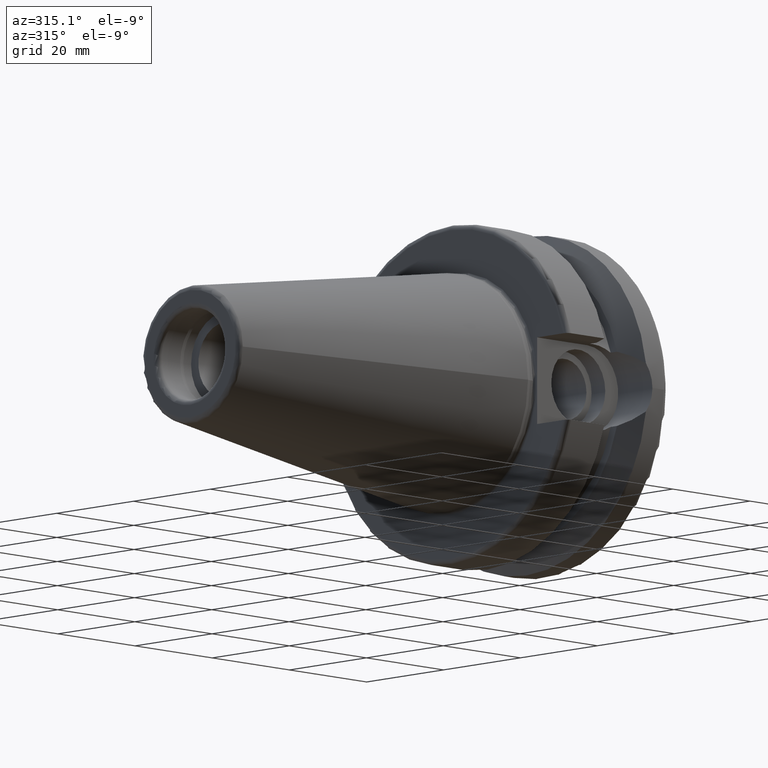
[diagram: clean part render]
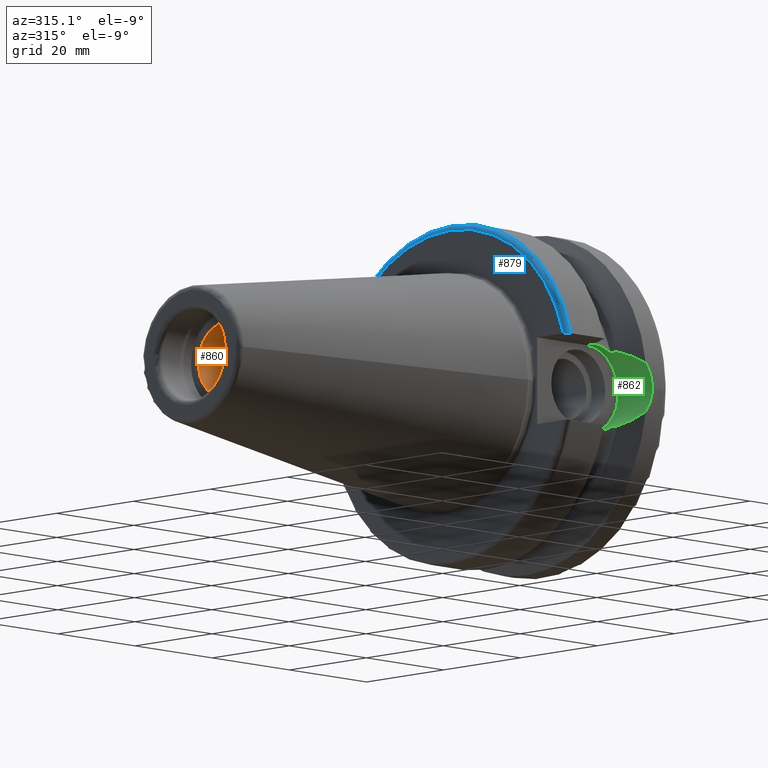
[diagram: same view with three faces highlighted in distinct colors, each labeled with its STEP entity id]
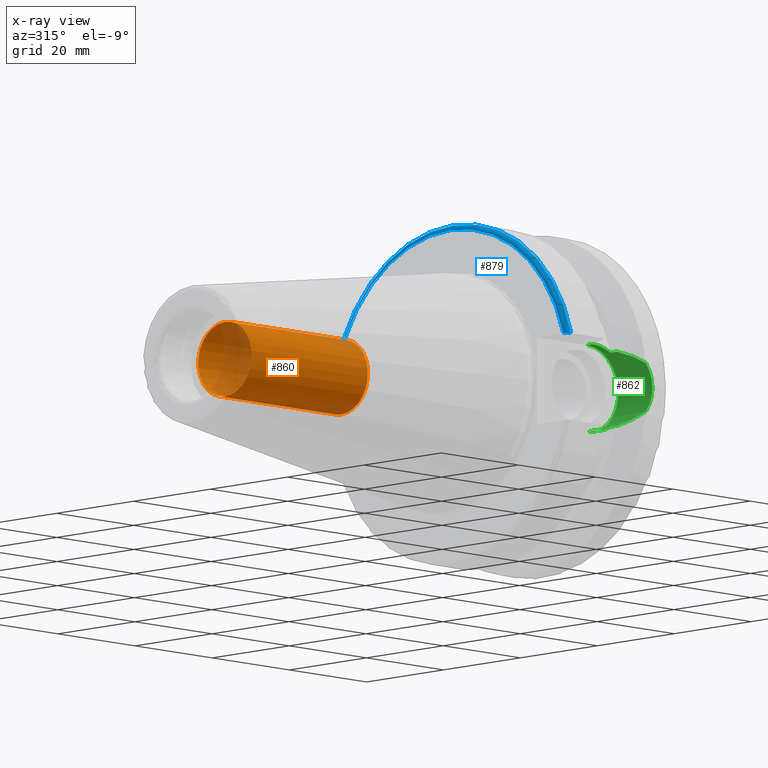
[diagram: x-ray of the same camera — body ghosted, the three highlighted faces saturated]
A machine part, auxiliary view with three faces highlighted in distinct colors.
The next image is the same camera in x-ray (body ghosted, the three faces saturated) — at least one of them is partly hidden behind the body in this view.
Their STEP definitions:

[orange] entity #860 — the highlighted cylindrical surface (bore or boss wall) has radius 6.9175 mm, axis along (-1, 0, 0).
#102=FACE_OUTER_BOUND('',#163,.T.);
#163=EDGE_LOOP('',(#630,#631,#632,#633));
#213=LINE('',#1422,#259);
#259=VECTOR('',#1127,6.9175);
#318=CIRCLE('',#956,6.9175);
#319=CIRCLE('',#960,6.9175);
#379=VERTEX_POINT('',#1414);
#380=VERTEX_POINT('',#1420);
#472=EDGE_CURVE('',#379,#379,#318,.T.);
#474=EDGE_CURVE('',#380,#380,#319,.T.);
#475=EDGE_CURVE('',#380,#379,#213,.T.);
#630=ORIENTED_EDGE('',*,*,#474,.F.);
#631=ORIENTED_EDGE('',*,*,#475,.T.);
#632=ORIENTED_EDGE('',*,*,#472,.T.);
#633=ORIENTED_EDGE('',*,*,#475,.F.);
#832=CYLINDRICAL_SURFACE('',#959,6.9175);
#860=ADVANCED_FACE('',(#102),#832,.F.);
#956=AXIS2_PLACEMENT_3D('',#1415,#1116,#1117);
#959=AXIS2_PLACEMENT_3D('',#1419,#1123,#1124);
#960=AXIS2_PLACEMENT_3D('',#1421,#1125,#1126);
#1116=DIRECTION('center_axis',(1.,0.,0.));
#1117=DIRECTION('ref_axis',(0.,0.,1.));
#1123=DIRECTION('center_axis',(-1.,0.,0.));
#1124=DIRECTION('ref_axis',(0.,0.,1.));
#1125=DIRECTION('center_axis',(1.,0.,0.));
#1126=DIRECTION('ref_axis',(0.,0.,1.));
#1127=DIRECTION('',(1.,0.,0.));
#1414=CARTESIAN_POINT('',(-26.22,8.47149423310182E-16,-6.9175));
#1415=CARTESIAN_POINT('Origin',(-26.22,0.,0.));
#1419=CARTESIAN_POINT('Origin',(-38.485,0.,0.));
#1420=CARTESIAN_POINT('',(-56.4,8.47149423310182E-16,-6.9175));
#1421=CARTESIAN_POINT('Origin',(-56.4,0.,0.));
#1422=CARTESIAN_POINT('',(-38.485,-8.47149423310182E-16,-6.9175));

[blue] entity #879 — the highlighted toroidal blend (fillet) surface has major radius 30.5 mm and minor (blend) radius 1 mm.
#31=TOROIDAL_SURFACE('',#996,30.5,1.00000000000001);
#38=B_SPLINE_CURVE_WITH_KNOTS('',3,(#1436,#1437,#1438,#1439,#1440,#1441,
#1442,#1443,#1444,#1445),.UNSPECIFIED.,.F.,.F.,(4,2,2,2,4),(-0.150751871388631,
-0.111946181815504,-0.0738743445372396,-0.0366169489027566,0.),
 .UNSPECIFIED.);
#50=B_SPLINE_CURVE_WITH_KNOTS('',3,(#1610,#1611,#1612,#1613,#1614,#1615,
#1616,#1617,#1618,#1619),.UNSPECIFIED.,.F.,.F.,(4,2,2,2,4),(0.,0.0366169489027566,
0.0738743445372396,0.111946181815504,0.150751871388631),.UNSPECIFIED.);
#121=FACE_OUTER_BOUND('',#185,.T.);
#185=EDGE_LOOP('',(#751,#752,#753,#754));
#333=CIRCLE('',#991,30.5);
#337=CIRCLE('',#997,31.5);
#385=VERTEX_POINT('',#1433);
#386=VERTEX_POINT('',#1435);
#420=VERTEX_POINT('',#1607);
#421=VERTEX_POINT('',#1609);
#480=EDGE_CURVE('',#386,#385,#38,.T.);
#527=EDGE_CURVE('',#421,#420,#50,.T.);
#539=EDGE_CURVE('',#420,#386,#333,.T.);
#543=EDGE_CURVE('',#421,#385,#337,.T.);
#751=ORIENTED_EDGE('',*,*,#480,.T.);
#752=ORIENTED_EDGE('',*,*,#543,.F.);
#753=ORIENTED_EDGE('',*,*,#527,.T.);
#754=ORIENTED_EDGE('',*,*,#539,.T.);
#879=ADVANCED_FACE('',(#121),#31,.T.);
#991=AXIS2_PLACEMENT_3D('',#1653,#1219,#1220);
#996=AXIS2_PLACEMENT_3D('',#1659,#1229,#1230);
#997=AXIS2_PLACEMENT_3D('',#1660,#1231,#1232);
#1219=DIRECTION('center_axis',(1.,0.,0.));
#1220=DIRECTION('ref_axis',(0.,0.,-1.));
#1229=DIRECTION('center_axis',(1.,0.,0.));
#1230=DIRECTION('ref_axis',(0.,-1.22464679914735E-16,1.));
#1231=DIRECTION('center_axis',(1.,0.,0.));
#1232=DIRECTION('ref_axis',(0.,0.,-1.));
#1433=CARTESIAN_POINT('',(2.99999999999999,-30.4540227227866,8.05));
#1435=CARTESIAN_POINT('',(1.99999999999999,-29.4184890842477,8.05));
#1436=CARTESIAN_POINT('Ctrl Pts',(1.99999999999999,-29.4184890842477,8.05));
#1437=CARTESIAN_POINT('Ctrl Pts',(1.99999999999999,-29.5478413828248,8.05));
#1438=CARTESIAN_POINT('Ctrl Pts',(2.02950258743517,-29.7002346307938,8.05));
#1439=CARTESIAN_POINT('Ctrl Pts',(2.12587454939785,-29.9376810968085,8.05));
#1440=CARTESIAN_POINT('Ctrl Pts',(2.2089547883793,-30.0653098968133,8.05));
#1441=CARTESIAN_POINT('Ctrl Pts',(2.38465986426588,-30.2446912007727,8.05));
#1442=CARTESIAN_POINT('Ctrl Pts',(2.50758665841081,-30.3289456947341,8.05));
#1443=CARTESIAN_POINT('Ctrl Pts',(2.73442803339431,-30.4247631098996,8.05));
#1444=CARTESIAN_POINT('Ctrl Pts',(2.87794350365748,-30.4540227227866,8.05));
#1445=CARTESIAN_POINT('Ctrl Pts',(3.,-30.4540227227866,8.05));
#1607=CARTESIAN_POINT('',(1.99999999999999,29.4184890842477,8.05));
#1609=CARTESIAN_POINT('',(2.99999999999999,30.4540227227866,8.05));
#1610=CARTESIAN_POINT('Ctrl Pts',(3.,30.4540227227866,8.05));
#1611=CARTESIAN_POINT('Ctrl Pts',(2.87794350365748,30.4540227227866,8.05));
#1612=CARTESIAN_POINT('Ctrl Pts',(2.73442803339431,30.4247631098996,8.05));
#1613=CARTESIAN_POINT('Ctrl Pts',(2.50758665841081,30.3289456947341,8.05));
#1614=CARTESIAN_POINT('Ctrl Pts',(2.38465986426588,30.2446912007727,8.05));
#1615=CARTESIAN_POINT('Ctrl Pts',(2.2089547883793,30.0653098968133,8.05));
#1616=CARTESIAN_POINT('Ctrl Pts',(2.12587454939785,29.9376810968085,8.05));
#1617=CARTESIAN_POINT('Ctrl Pts',(2.02950258743517,29.7002346307938,8.05));
#1618=CARTESIAN_POINT('Ctrl Pts',(1.99999999999999,29.5478413828248,8.05));
#1619=CARTESIAN_POINT('Ctrl Pts',(1.99999999999999,29.4184890842477,8.05));
#1653=CARTESIAN_POINT('Origin',(1.99999999999999,0.,0.));
#1659=CARTESIAN_POINT('Origin',(3.,0.,0.));
#1660=CARTESIAN_POINT('Origin',(2.99999999999999,0.,0.));

[green] entity #862 — the highlighted cylindrical surface (partial cylindrical patch) has radius 8.05 mm, axis along (0, 1, 0).
#39=B_SPLINE_CURVE_WITH_KNOTS('',3,(#1453,#1454,#1455,#1456,#1457,#1458),
 .UNSPECIFIED.,.F.,.F.,(4,2,4),(0.,0.305559393991992,0.418764848000603),
 .UNSPECIFIED.);
#40=B_SPLINE_CURVE_WITH_KNOTS('',3,(#1464,#1465,#1466,#1467,#1468,#1469),
 .UNSPECIFIED.,.F.,.F.,(4,2,4),(2.02525951614585,2.13846497015446,2.44402436414645),
 .UNSPECIFIED.);
#41=B_SPLINE_CURVE_WITH_KNOTS('',3,(#1473,#1474,#1475,#1476,#1477,#1478),
 .UNSPECIFIED.,.F.,.F.,(4,2,4),(3.12975744792547,3.62699288756974,3.70848737461386),
 .UNSPECIFIED.);
#42=B_SPLINE_CURVE_WITH_KNOTS('',3,(#1480,#1481,#1482,#1483,#1484,#1485),
 .UNSPECIFIED.,.F.,.F.,(4,2,4),(1.21877751840372,1.52344857393281,1.67526011710938),
 .UNSPECIFIED.);
#43=B_SPLINE_CURVE_WITH_KNOTS('',3,(#1487,#1488,#1489,#1490,#1491,#1492),
 .UNSPECIFIED.,.F.,.F.,(4,2,4),(0.762294919698051,0.914106462874623,1.21877751840372),
 .UNSPECIFIED.);
#44=B_SPLINE_CURVE_WITH_KNOTS('',3,(#1494,#1495,#1496,#1497,#1498,#1499),
 .UNSPECIFIED.,.F.,.F.,(4,2,4),(1.46421027899559,1.54570476603972,2.04294020568399),
 .UNSPECIFIED.);
#104=FACE_OUTER_BOUND('',#165,.T.);
#165=EDGE_LOOP('',(#642,#643,#644,#645,#646,#647,#648,#649,#650,#651,#652));
#219=LINE('',#1450,#265);
#220=LINE('',#1462,#266);
#221=LINE('',#1471,#267);
#222=LINE('',#1500,#268);
#265=VECTOR('',#1135,10.);
#266=VECTOR('',#1140,10.);
#267=VECTOR('',#1141,10.);
#268=VECTOR('',#1142,10.);
#320=CIRCLE('',#963,8.05);
#382=VERTEX_POINT('',#1425);
#388=VERTEX_POINT('',#1448);
#389=VERTEX_POINT('',#1452);
#390=VERTEX_POINT('',#1459);
#391=VERTEX_POINT('',#1461);
#392=VERTEX_POINT('',#1463);
#393=VERTEX_POINT('',#1470);
#394=VERTEX_POINT('',#1472);
#395=VERTEX_POINT('',#1479);
#396=VERTEX_POINT('',#1486);
#397=VERTEX_POINT('',#1493);
#483=EDGE_CURVE('',#388,#382,#219,.T.);
#484=EDGE_CURVE('',#382,#389,#39,.T.);
#485=EDGE_CURVE('',#388,#390,#320,.T.);
#486=EDGE_CURVE('',#390,#391,#220,.T.);
#487=EDGE_CURVE('',#392,#391,#40,.T.);
#488=EDGE_CURVE('',#393,#392,#221,.T.);
#489=EDGE_CURVE('',#394,#393,#41,.T.);
#490=EDGE_CURVE('',#395,#394,#42,.T.);
#491=EDGE_CURVE('',#396,#395,#43,.T.);
#492=EDGE_CURVE('',#397,#396,#44,.T.);
#493=EDGE_CURVE('',#389,#397,#222,.T.);
#642=ORIENTED_EDGE('',*,*,#484,.F.);
#643=ORIENTED_EDGE('',*,*,#483,.F.);
#644=ORIENTED_EDGE('',*,*,#485,.T.);
#645=ORIENTED_EDGE('',*,*,#486,.T.);
#646=ORIENTED_EDGE('',*,*,#487,.F.);
#647=ORIENTED_EDGE('',*,*,#488,.F.);
#648=ORIENTED_EDGE('',*,*,#489,.F.);
#649=ORIENTED_EDGE('',*,*,#490,.F.);
#650=ORIENTED_EDGE('',*,*,#491,.F.);
#651=ORIENTED_EDGE('',*,*,#492,.F.);
#652=ORIENTED_EDGE('',*,*,#493,.F.);
#833=CYLINDRICAL_SURFACE('',#962,8.05);
#862=ADVANCED_FACE('',(#104),#833,.F.);
#962=AXIS2_PLACEMENT_3D('',#1451,#1136,#1137);
#963=AXIS2_PLACEMENT_3D('',#1460,#1138,#1139);
#1135=DIRECTION('',(0.,-1.,0.));
#1136=DIRECTION('center_axis',(0.,1.,0.));
#1137=DIRECTION('ref_axis',(0.,0.,1.));
#1138=DIRECTION('center_axis',(0.,1.,0.));
#1139=DIRECTION('ref_axis',(0.,0.,1.));
#1140=DIRECTION('',(0.,-1.,0.));
#1141=DIRECTION('',(0.,1.,0.));
#1142=DIRECTION('',(0.,-1.,0.));
#1425=CARTESIAN_POINT('',(14.95,-24.1960224003864,8.05));
#1448=CARTESIAN_POINT('',(14.95,-22.6,8.05));
#1450=CARTESIAN_POINT('',(14.95,-22.6,8.05));
#1451=CARTESIAN_POINT('Origin',(14.95,-22.6,0.));
#1452=CARTESIAN_POINT('',(19.1,-24.5493380766162,6.89782574439221));
#1453=CARTESIAN_POINT('Ctrl Pts',(14.95,-24.1960224003864,8.05));
#1454=CARTESIAN_POINT('Ctrl Pts',(15.9685313133066,-24.1960224003864,8.05));
#1455=CARTESIAN_POINT('Ctrl Pts',(17.0497516664971,-24.2670783971366,7.84501312719341));
#1456=CARTESIAN_POINT('Ctrl Pts',(18.4072379028184,-24.4390565244262,7.28065599998141));
#1457=CARTESIAN_POINT('Ctrl Pts',(18.7625417379862,-24.492291659194,7.10085374759973));
#1458=CARTESIAN_POINT('Ctrl Pts',(19.1,-24.5493380766162,6.89782574439221));
#1459=CARTESIAN_POINT('',(14.95,-22.6,-8.05));
#1460=CARTESIAN_POINT('Origin',(14.95,-22.6,0.));
#1461=CARTESIAN_POINT('',(14.95,-24.1960224003864,-8.05));
#1462=CARTESIAN_POINT('',(14.95,-22.6,-8.05));
#1463=CARTESIAN_POINT('',(19.1,-24.5493380766162,-6.89782574439221));
#1464=CARTESIAN_POINT('Ctrl Pts',(19.1,-24.5493380766162,-6.89782574439221));
#1465=CARTESIAN_POINT('Ctrl Pts',(18.7625417379862,-24.492291659194,-7.10085374759973));
#1466=CARTESIAN_POINT('Ctrl Pts',(18.4072379028184,-24.4390565244262,-7.28065599998141));
#1467=CARTESIAN_POINT('Ctrl Pts',(17.0497516664971,-24.2670783971366,-7.84501312719341));
#1468=CARTESIAN_POINT('Ctrl Pts',(15.9685313133066,-24.1960224003864,-8.05));
#1469=CARTESIAN_POINT('Ctrl Pts',(14.95,-24.1960224003864,-8.05));
#1470=CARTESIAN_POINT('',(19.1,-26.201311395455,-6.89782574439221));
#1471=CARTESIAN_POINT('',(19.1,-22.6,-6.89782574439221));
#1472=CARTESIAN_POINT('',(21.6309636926618,-31.1782420264945,-4.4907932637046));
#1473=CARTESIAN_POINT('Ctrl Pts',(21.6309636926618,-31.1782420264945,-4.4907932637046));
#1474=CARTESIAN_POINT('Ctrl Pts',(20.9728756148303,-29.8797957262939,-5.46983244373115));
#1475=CARTESIAN_POINT('Ctrl Pts',(20.1784155384866,-28.3157123387484,-6.18231368976925));
#1476=CARTESIAN_POINT('Ctrl Pts',(19.3406963650697,-26.6728819297428,-6.74867108656039));
#1477=CARTESIAN_POINT('Ctrl Pts',(19.2210929544554,-26.4384736933511,-6.82497151762395));
#1478=CARTESIAN_POINT('Ctrl Pts',(19.1,-26.201311395455,-6.89782574439221));
#1479=CARTESIAN_POINT('',(23.,-31.5,-1.51248507442265E-15));
#1480=CARTESIAN_POINT('Ctrl Pts',(23.,-31.5,8.32667268468867E-16));
#1481=CARTESIAN_POINT('Ctrl Pts',(23.,-31.5,-1.01557018509698));
#1482=CARTESIAN_POINT('Ctrl Pts',(22.7961189876535,-31.445974204441,-2.09580170425552));
#1483=CARTESIAN_POINT('Ctrl Pts',(22.1796133812044,-31.2997625705024,-3.58065358198869));
#1484=CARTESIAN_POINT('Ctrl Pts',(21.92482980253,-31.2412125047166,-4.05360796141051));
#1485=CARTESIAN_POINT('Ctrl Pts',(21.6309636926618,-31.1782420264945,-4.4907932637046));
#1486=CARTESIAN_POINT('',(21.6309636926618,-31.1782420264945,4.4907932637046));
#1487=CARTESIAN_POINT('Ctrl Pts',(21.6309636926618,-31.1782420264945,4.4907932637046));
#1488=CARTESIAN_POINT('Ctrl Pts',(21.92482980253,-31.2412125047166,4.05360796141051));
#1489=CARTESIAN_POINT('Ctrl Pts',(22.1796133812044,-31.2997625705024,3.58065358198869));
#1490=CARTESIAN_POINT('Ctrl Pts',(22.7961189876535,-31.445974204441,2.09580170425552));
#1491=CARTESIAN_POINT('Ctrl Pts',(23.,-31.5,1.01557018509698));
#1492=CARTESIAN_POINT('Ctrl Pts',(23.,-31.5,-2.77555756156289E-16));
#1493=CARTESIAN_POINT('',(19.1,-26.201311395455,6.89782574439221));
#1494=CARTESIAN_POINT('Ctrl Pts',(19.1,-26.201311395455,6.89782574439221));
#1495=CARTESIAN_POINT('Ctrl Pts',(19.2210929544554,-26.4384736933511,6.82497151762395));
#1496=CARTESIAN_POINT('Ctrl Pts',(19.3406963650697,-26.6728819297428,6.74867108656039));
#1497=CARTESIAN_POINT('Ctrl Pts',(20.1784155384866,-28.3157123387484,6.18231368976925));
#1498=CARTESIAN_POINT('Ctrl Pts',(20.9728756148303,-29.8797957262939,5.46983244373115));
#1499=CARTESIAN_POINT('Ctrl Pts',(21.6309636926618,-31.1782420264945,4.4907932637046));
#1500=CARTESIAN_POINT('',(19.1,-22.6,6.89782574439221));